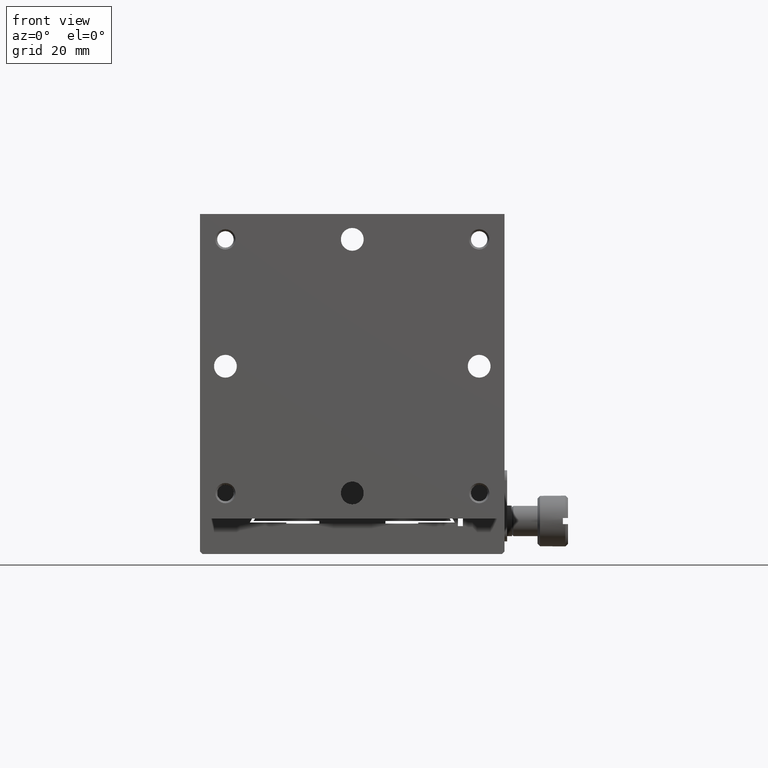
[diagram: clean part render]
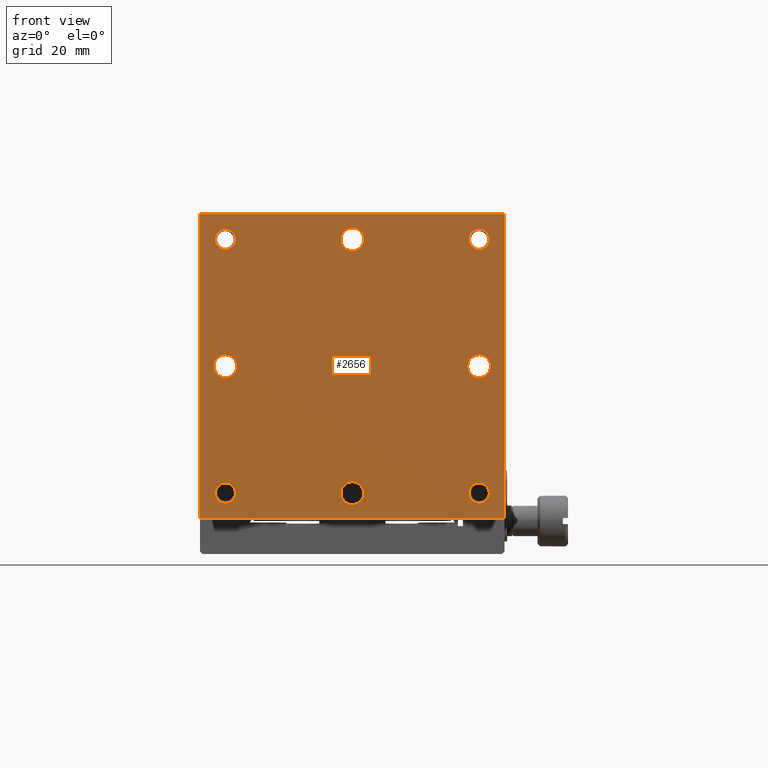
[diagram: same view with one face highlighted and labeled with its STEP entity id]
A machine part, front view. The second image highlights one B-rep face of the part: STEP entity #2656.
In plain terms, the highlighted planar face has unit normal (0, 1, 0).
Its self-contained STEP definition (entity closure, byte-faithful):
#15 = DIRECTION ( 'NONE',  ( 0.000000000000000000, -1.000000000000000000, 0.000000000000000000 ) ) ;
#66 = CARTESIAN_POINT ( 'NONE',  ( 30.00000000000000000, 0.000000000000000000, -10.00000000000000000 ) ) ;
#74 = CARTESIAN_POINT ( 'NONE',  ( 0.000000000000000000, 0.000000000000000000, 42.74999999999999289 ) ) ;
#113 = VERTEX_POINT ( 'NONE', #3597 ) ;
#207 = VERTEX_POINT ( 'NONE', #4641 ) ;
#511 = ORIENTED_EDGE ( 'NONE', *, *, #2425, .F. ) ;
#515 = DIRECTION ( 'NONE',  ( 0.000000000000000000, 0.000000000000000000, -1.000000000000000000 ) ) ;
#583 = EDGE_CURVE ( 'NONE', #2104, #2104, #2915, .T. ) ;
#685 = DIRECTION ( 'NONE',  ( 1.000000000000000000, 0.000000000000000000, -0.000000000000000000 ) ) ;
#688 = VECTOR ( 'NONE', #685, 1000.000000000000000 ) ;
#700 = EDGE_CURVE ( 'NONE', #3407, #207, #6636, .T. ) ;
#723 = ORIENTED_EDGE ( 'NONE', *, *, #700, .T. ) ;
#854 = ORIENTED_EDGE ( 'NONE', *, *, #5009, .F. ) ;
#867 = CARTESIAN_POINT ( 'NONE',  ( 30.00000000000000000, 0.000000000000000000, 50.00000000000000000 ) ) ;
#907 = FACE_BOUND ( 'NONE', #1368, .T. ) ;
#1055 = EDGE_LOOP ( 'NONE', ( #3821 ) ) ;
#1158 = EDGE_CURVE ( 'NONE', #6533, #6533, #5226, .T. ) ;
#1169 = CARTESIAN_POINT ( 'NONE',  ( -25.00000000000000000, 0.000000000000000000, 20.00000000000000000 ) ) ;
#1226 = EDGE_LOOP ( 'NONE', ( #6335 ) ) ;
#1264 = EDGE_LOOP ( 'NONE', ( #511 ) ) ;
#1347 = FACE_BOUND ( 'NONE', #4337, .T. ) ;
#1368 = EDGE_LOOP ( 'NONE', ( #4504 ) ) ;
#1479 = CARTESIAN_POINT ( 'NONE',  ( 30.00000000000000000, 0.000000000000000000, 50.00000000000000000 ) ) ;
#1499 = CARTESIAN_POINT ( 'NONE',  ( 30.00000000000000000, 0.000000000000000000, 0.000000000000000000 ) ) ;
#1615 = CARTESIAN_POINT ( 'NONE',  ( -30.00000000000000000, 0.000000000000000000, 0.000000000000000000 ) ) ;
#1804 = EDGE_LOOP ( 'NONE', ( #854 ) ) ;
#1830 = VERTEX_POINT ( 'NONE', #4255 ) ;
#1889 = DIRECTION ( 'NONE',  ( 0.000000000000000000, 0.000000000000000000, -1.000000000000000000 ) ) ;
#2104 = VERTEX_POINT ( 'NONE', #74 ) ;
#2113 = EDGE_CURVE ( 'NONE', #113, #113, #6053, .T. ) ;
#2155 = CARTESIAN_POINT ( 'NONE',  ( 0.000000000000000000, 0.000000000000000000, -7.250000000000000000 ) ) ;
#2225 = LINE ( 'NONE', #4462, #4002 ) ;
#2228 = CARTESIAN_POINT ( 'NONE',  ( 25.00000000000000000, 0.000000000000000000, -7.000000000005002221 ) ) ;
#2279 = DIRECTION ( 'NONE',  ( 0.000000000000000000, -1.000000000000000000, 0.000000000000000000 ) ) ;
#2367 = CARTESIAN_POINT ( 'NONE',  ( 30.00000000000000000, 0.000000000000000000, -9.999999999999991118 ) ) ;
#2425 = EDGE_CURVE ( 'NONE', #5269, #5269, #6992, .T. ) ;
#2500 = CARTESIAN_POINT ( 'NONE',  ( 25.00000000000000000, 0.000000000000000000, 17.75000000000000355 ) ) ;
#2501 = FACE_BOUND ( 'NONE', #1804, .T. ) ;
#2503 = DIRECTION ( 'NONE',  ( 0.000000000000000000, 0.000000000000000000, -1.000000000000000000 ) ) ;
#2539 = ORIENTED_EDGE ( 'NONE', *, *, #4441, .T. ) ;
#2568 = EDGE_CURVE ( 'NONE', #1830, #1830, #5592, .T. ) ;
#2583 = LINE ( 'NONE', #1499, #6316 ) ;
#2656 = ADVANCED_FACE ( 'NONE', ( #3055, #6949, #2501, #907, #3673, #5891, #1347, #5924, #4876 ), #6481, .F. ) ;
#2713 = DIRECTION ( 'NONE',  ( -1.000000000000000000, 0.000000000000000000, -0.000000000000000000 ) ) ;
#2797 = ORIENTED_EDGE ( 'NONE', *, *, #2113, .F. ) ;
#2810 = CARTESIAN_POINT ( 'NONE',  ( 0.000000000000000000, 0.000000000000000000, -5.000000000000000000 ) ) ;
#2902 = VECTOR ( 'NONE', #3861, 1000.000000000000000 ) ;
#2915 = CIRCLE ( 'NONE', #6506, 2.250000000000001776 ) ;
#2919 = AXIS2_PLACEMENT_3D ( 'NONE', #3326, #5571, #515 ) ;
#2936 = VERTEX_POINT ( 'NONE', #2228 ) ;
#3022 = EDGE_CURVE ( 'NONE', #207, #6973, #3487, .T. ) ;
#3055 = FACE_OUTER_BOUND ( 'NONE', #3082, .T. ) ;
#3082 = EDGE_LOOP ( 'NONE', ( #3530, #5297, #2539, #723 ) ) ;
#3182 = CARTESIAN_POINT ( 'NONE',  ( 25.00000000000000000, -5.684341886080801487E-11, 42.99999999994952304 ) ) ;
#3234 = EDGE_LOOP ( 'NONE', ( #7021 ) ) ;
#3236 = VERTEX_POINT ( 'NONE', #4736 ) ;
#3326 = CARTESIAN_POINT ( 'NONE',  ( -25.00000000000000000, 0.000000000000000000, -5.000000000000000000 ) ) ;
#3406 = EDGE_CURVE ( 'NONE', #6667, #6973, #2583, .T. ) ;
#3407 = VERTEX_POINT ( 'NONE', #4885 ) ;
#3487 = LINE ( 'NONE', #66, #688 ) ;
#3530 = ORIENTED_EDGE ( 'NONE', *, *, #3022, .T. ) ;
#3597 = CARTESIAN_POINT ( 'NONE',  ( -25.00000000000000000, 0.000000000000000000, -7.000000000005002221 ) ) ;
#3673 = FACE_BOUND ( 'NONE', #1055, .T. ) ;
#3741 = DIRECTION ( 'NONE',  ( 0.000000000000000000, 1.000000000000000000, 0.000000000000000000 ) ) ;
#3818 = EDGE_CURVE ( 'NONE', #3236, #3236, #6203, .T. ) ;
#3821 = ORIENTED_EDGE ( 'NONE', *, *, #583, .F. ) ;
#3861 = DIRECTION ( 'NONE',  ( 0.000000000000000000, 0.000000000000000000, -1.000000000000000000 ) ) ;
#3966 = DIRECTION ( 'NONE',  ( 0.000000000000000000, -1.000000000000000000, 0.000000000000000000 ) ) ;
#3973 = AXIS2_PLACEMENT_3D ( 'NONE', #867, #3741, #6376 ) ;
#4002 = VECTOR ( 'NONE', #2713, 1000.000000000000000 ) ;
#4010 = CIRCLE ( 'NONE', #5977, 2.250000000000000444 ) ;
#4084 = AXIS2_PLACEMENT_3D ( 'NONE', #7212, #2279, #5458 ) ;
#4191 = DIRECTION ( 'NONE',  ( 0.000000000000000000, 0.000000000000000000, -1.000000000000000000 ) ) ;
#4250 = EDGE_LOOP ( 'NONE', ( #6082 ) ) ;
#4255 = CARTESIAN_POINT ( 'NONE',  ( -25.00000000000000000, 0.000000000000000000, 17.75000000000000355 ) ) ;
#4265 = AXIS2_PLACEMENT_3D ( 'NONE', #6966, #6932, #1889 ) ;
#4337 = EDGE_LOOP ( 'NONE', ( #2797 ) ) ;
#4368 = DIRECTION ( 'NONE',  ( 0.000000000000000000, 0.000000000000000000, -1.000000000000000000 ) ) ;
#4441 = EDGE_CURVE ( 'NONE', #6667, #3407, #2225, .T. ) ;
#4462 = CARTESIAN_POINT ( 'NONE',  ( 30.00000000000000000, 0.000000000000000000, 50.00000000000000000 ) ) ;
#4504 = ORIENTED_EDGE ( 'NONE', *, *, #2568, .F. ) ;
#4535 = AXIS2_PLACEMENT_3D ( 'NONE', #6147, #5455, #4368 ) ;
#4641 = CARTESIAN_POINT ( 'NONE',  ( -30.00000000000000000, 0.000000000000000000, -9.999999999999991118 ) ) ;
#4693 = AXIS2_PLACEMENT_3D ( 'NONE', #5963, #5273, #2503 ) ;
#4736 = CARTESIAN_POINT ( 'NONE',  ( -25.00000000000000000, -5.684341886080801487E-11, 42.99999999994952304 ) ) ;
#4749 = DIRECTION ( 'NONE',  ( 0.000000000000000000, -1.000000000000000000, 0.000000000000000000 ) ) ;
#4876 = FACE_BOUND ( 'NONE', #3234, .T. ) ;
#4885 = CARTESIAN_POINT ( 'NONE',  ( -30.00000000000000000, 0.000000000000000000, 50.00000000000000000 ) ) ;
#5009 = EDGE_CURVE ( 'NONE', #6580, #6580, #4010, .T. ) ;
#5226 = CIRCLE ( 'NONE', #4535, 2.000000000050475180 ) ;
#5269 = VERTEX_POINT ( 'NONE', #2500 ) ;
#5273 = DIRECTION ( 'NONE',  ( 0.000000000000000000, -1.000000000000000000, 0.000000000000000000 ) ) ;
#5297 = ORIENTED_EDGE ( 'NONE', *, *, #3406, .F. ) ;
#5326 = DIRECTION ( 'NONE',  ( 0.000000000000000000, 0.000000000000000000, -1.000000000000000000 ) ) ;
#5455 = DIRECTION ( 'NONE',  ( 0.000000000000000000, -1.000000000000000000, 0.000000000000000000 ) ) ;
#5458 = DIRECTION ( 'NONE',  ( 0.000000000000000000, 0.000000000000000000, -1.000000000000000000 ) ) ;
#5471 = AXIS2_PLACEMENT_3D ( 'NONE', #1169, #3966, #6300 ) ;
#5571 = DIRECTION ( 'NONE',  ( 0.000000000000000000, -1.000000000000000000, 0.000000000000000000 ) ) ;
#5592 = CIRCLE ( 'NONE', #5471, 2.249999999999998668 ) ;
#5835 = CARTESIAN_POINT ( 'NONE',  ( 0.000000000000000000, 0.000000000000000000, 45.00000000000000000 ) ) ;
#5891 = FACE_BOUND ( 'NONE', #4250, .T. ) ;
#5924 = FACE_BOUND ( 'NONE', #1226, .T. ) ;
#5963 = CARTESIAN_POINT ( 'NONE',  ( -25.00000000000000000, -5.684341886080801487E-11, 45.00000000000000000 ) ) ;
#5977 = AXIS2_PLACEMENT_3D ( 'NONE', #2810, #15, #6159 ) ;
#6053 = CIRCLE ( 'NONE', #2919, 2.000000000005002221 ) ;
#6082 = ORIENTED_EDGE ( 'NONE', *, *, #1158, .F. ) ;
#6147 = CARTESIAN_POINT ( 'NONE',  ( 25.00000000000000000, -5.684341886080801487E-11, 45.00000000000000000 ) ) ;
#6159 = DIRECTION ( 'NONE',  ( 0.000000000000000000, 0.000000000000000000, -1.000000000000000000 ) ) ;
#6203 = CIRCLE ( 'NONE', #4693, 2.000000000050475180 ) ;
#6300 = DIRECTION ( 'NONE',  ( 0.000000000000000000, 0.000000000000000000, -1.000000000000000000 ) ) ;
#6316 = VECTOR ( 'NONE', #4191, 1000.000000000000000 ) ;
#6335 = ORIENTED_EDGE ( 'NONE', *, *, #7120, .F. ) ;
#6376 = DIRECTION ( 'NONE',  ( 0.000000000000000000, -0.000000000000000000, 1.000000000000000000 ) ) ;
#6481 = PLANE ( 'NONE',  #3973 ) ;
#6506 = AXIS2_PLACEMENT_3D ( 'NONE', #5835, #4749, #5326 ) ;
#6533 = VERTEX_POINT ( 'NONE', #3182 ) ;
#6580 = VERTEX_POINT ( 'NONE', #2155 ) ;
#6636 = LINE ( 'NONE', #1615, #2902 ) ;
#6667 = VERTEX_POINT ( 'NONE', #1479 ) ;
#6825 = CIRCLE ( 'NONE', #4265, 2.000000000005002221 ) ;
#6932 = DIRECTION ( 'NONE',  ( 0.000000000000000000, -1.000000000000000000, 0.000000000000000000 ) ) ;
#6949 = FACE_BOUND ( 'NONE', #1264, .T. ) ;
#6966 = CARTESIAN_POINT ( 'NONE',  ( 25.00000000000000000, 0.000000000000000000, -5.000000000000000000 ) ) ;
#6973 = VERTEX_POINT ( 'NONE', #2367 ) ;
#6992 = CIRCLE ( 'NONE', #4084, 2.249999999999998668 ) ;
#7021 = ORIENTED_EDGE ( 'NONE', *, *, #3818, .F. ) ;
#7120 = EDGE_CURVE ( 'NONE', #2936, #2936, #6825, .T. ) ;
#7212 = CARTESIAN_POINT ( 'NONE',  ( 25.00000000000000000, 0.000000000000000000, 20.00000000000000000 ) ) ;